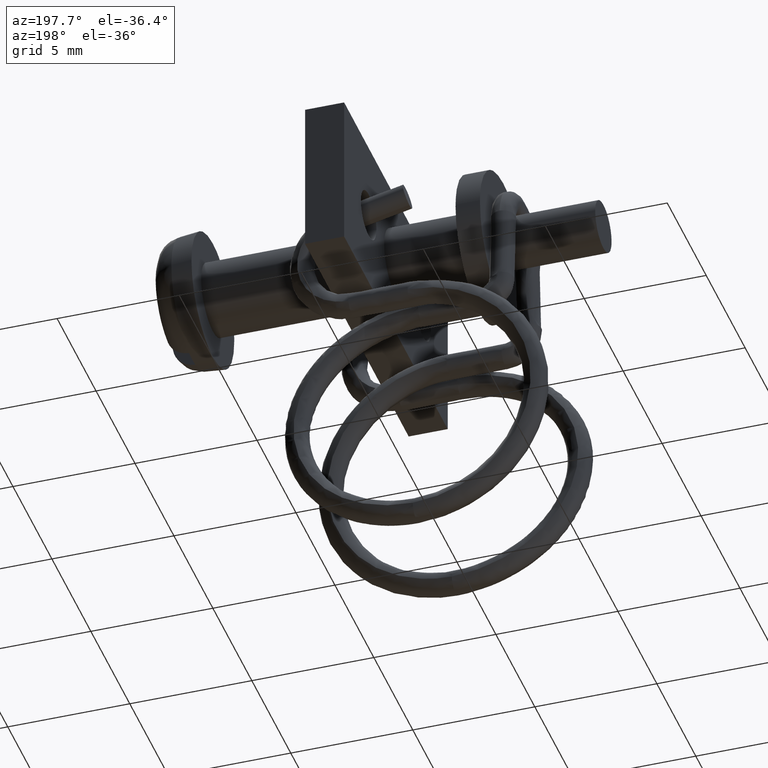
[diagram: clean part render]
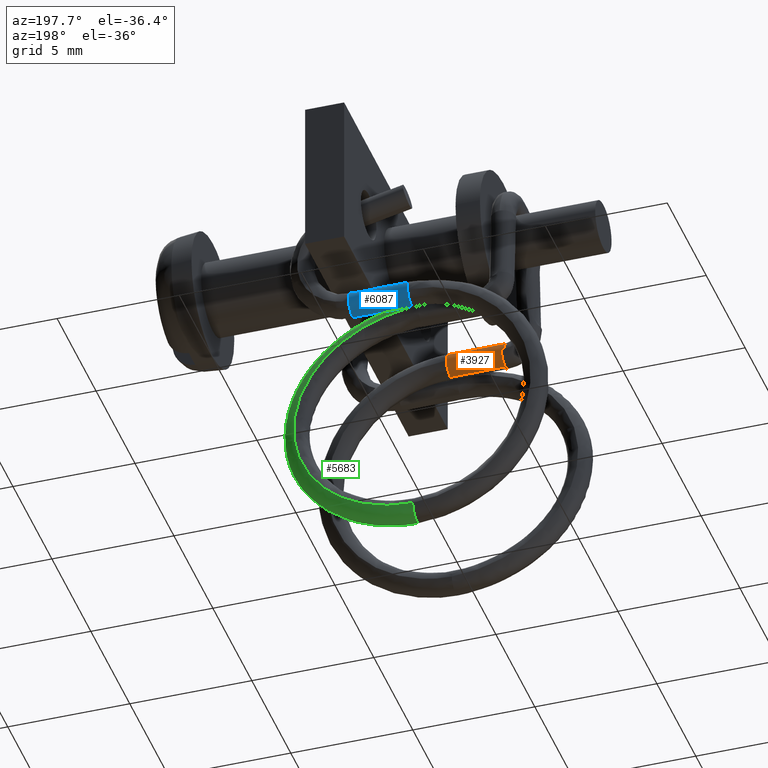
[diagram: same view with three faces highlighted in distinct colors, each labeled with its STEP entity id]
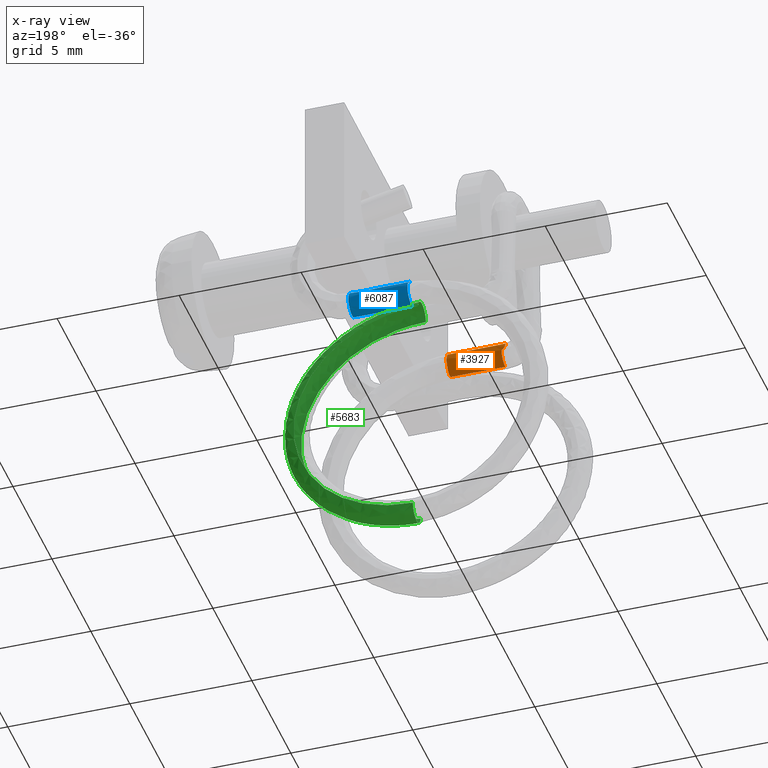
[diagram: x-ray of the same camera — body ghosted, the three highlighted faces saturated]
A machine part, auxiliary view with three faces highlighted in distinct colors.
The next image is the same camera in x-ray (body ghosted, the three faces saturated) — at least one of them is partly hidden behind the body in this view.
Their STEP definitions:

[orange] entity #3927 — the highlighted face is a freeform B-spline surface patch.
#3416=CARTESIAN_POINT('',(-9.150000000000107,-1.325094395360933,-4.033725234265491));
#3417=VERTEX_POINT('',#3416);
#3447=CARTESIAN_POINT('',(-9.150000000000105,-1.818437196620718,-4.499938782707879));
#3448=VERTEX_POINT('',#3447);
#3460=CARTESIAN_POINT('',(-9.150000000000107,-1.325094395360933,-4.033725234265491));
#3461=CARTESIAN_POINT('',(-9.150000000000107,-1.333923580721595,-4.164331175820698));
#3462=CARTESIAN_POINT('',(-9.150000000000107,-1.396462202735563,-4.290499852558422));
#3463=CARTESIAN_POINT('',(-9.150000000000107,-1.583783851617188,-4.454109181018163));
#3464=CARTESIAN_POINT('',(-9.150000000000107,-1.700730639473267,-4.498304522242333));
#3465=CARTESIAN_POINT('',(-9.150000000000105,-1.818437196620718,-4.499938782707879));
#3466=B_SPLINE_CURVE_WITH_KNOTS('',3,(#3460,#3461,#3462,#3463,#3464,#3465),.UNSPECIFIED.,.F.,.U.,(4,2,4),(0.500000000000000,0.625000000000000,0.737495030352528),.UNSPECIFIED.);
#3467=EDGE_CURVE('',#3417,#3448,#3466,.T.);
#3594=CARTESIAN_POINT('',(-9.150000000000107,-1.829474218034682,-3.500061217265068));
#3595=VERTEX_POINT('',#3594);
#3596=CARTESIAN_POINT('',(-9.150000000000107,-1.829474218034682,-3.500061217265068));
#3597=CARTESIAN_POINT('',(-9.150000000000107,-1.816389922858462,-3.499880360098274));
#3598=CARTESIAN_POINT('',(-9.150000000000107,-1.803296239522126,-3.500225412944921));
#3599=CARTESIAN_POINT('',(-9.150000000000107,-1.659629241141895,-3.509942363682003));
#3600=CARTESIAN_POINT('',(-9.150000000000109,-1.533466474067729,-3.572486602556249));
#3601=CARTESIAN_POINT('',(-9.150000000000107,-1.361254227003606,-3.769682533713687));
#3602=CARTESIAN_POINT('',(-9.150000000000107,-1.316265201222585,-3.903119926440690));
#3603=CARTESIAN_POINT('',(-9.150000000000107,-1.325094395360933,-4.033725234265491));
#3604=B_SPLINE_CURVE_WITH_KNOTS('',3,(#3596,#3597,#3598,#3599,#3600,#3601,#3602,#3603),.UNSPECIFIED.,.F.,.U.,(4,2,2,4),(0.237495030350194,0.250000000000000,0.375000000000000,0.500000000000000),.UNSPECIFIED.);
#3605=EDGE_CURVE('',#3595,#3417,#3604,.T.);
#3751=CARTESIAN_POINT('',(-11.416972772720220,-1.829474653824413,-3.500031429062623));
#3752=VERTEX_POINT('',#3751);
#3753=CARTESIAN_POINT('',(-11.416972772720220,-1.829474653824413,-3.500031429062623));
#3754=CARTESIAN_POINT('',(-9.150000000000107,-1.829474218034682,-3.500061217265068));
#3755=QUASI_UNIFORM_CURVE('',1,(#3753,#3754),.UNSPECIFIED.,.F.,.U.);
#3756=EDGE_CURVE('',#3752,#3595,#3755,.T.);
#3800=CARTESIAN_POINT('',(-11.400000000000000,-1.818439388492013,-4.499853503640596));
#3801=VERTEX_POINT('',#3800);
#3811=CARTESIAN_POINT('',(-11.400000000000000,-1.818439388492013,-4.499853503640596));
#3812=CARTESIAN_POINT('',(-9.150000000000105,-1.818437196620718,-4.499938782707879));
#3813=QUASI_UNIFORM_CURVE('',1,(#3811,#3812),.UNSPECIFIED.,.F.,.U.);
#3814=EDGE_CURVE('',#3801,#3448,#3813,.T.);
#3820=CARTESIAN_POINT('',(-11.588859964857440,-1.826058490935374,-4.500481906870347));
#3821=CARTESIAN_POINT('',(-11.588859964857440,-1.668786595068350,-4.501004415548722));
#3822=CARTESIAN_POINT('',(-11.588859964857431,-1.499511032190786,-4.423517969774761));
#3823=CARTESIAN_POINT('',(-11.588859964857450,-1.406354593065213,-4.306175667796277));
#3824=CARTESIAN_POINT('',(-11.588859964857431,-1.324298609008611,-4.153145342758368));
#3825=CARTESIAN_POINT('',(-11.588859964857440,-1.324897842861671,-3.834185362476309));
#3826=CARTESIAN_POINT('',(-11.588859964857431,-1.394012496513434,-3.676222241035402));
#3827=CARTESIAN_POINT('',(-11.588859964857450,-1.516051231901350,-3.556964573538060));
#3828=CARTESIAN_POINT('',(-11.588859964857420,-1.676391605308977,-3.496153956676137));
#3829=CARTESIAN_POINT('',(-11.588859964857431,-1.837441138142850,-3.500160323182365));
#3830=CARTESIAN_POINT('',(-10.755582810197851,-1.827082123565222,-4.499750727578457));
#3831=CARTESIAN_POINT('',(-10.755582810197851,-1.666223448922111,-4.495975069094302));
#3832=CARTESIAN_POINT('',(-10.755582810197851,-1.522877054247309,-4.441120896886440));
#3833=CARTESIAN_POINT('',(-10.755582810197851,-1.373915371766895,-4.322383690648544));
#3834=CARTESIAN_POINT('',(-10.755582810197859,-1.322704327175553,-4.160764823447692));
#3835=CARTESIAN_POINT('',(-10.755582810197851,-1.326763680287399,-3.836783246275283));
#3836=CARTESIAN_POINT('',(-10.755582810197851,-1.390560869650354,-3.679432011495660));
#3837=CARTESIAN_POINT('',(-10.755582810197840,-1.518050139343860,-3.557774323496225));
#3838=CARTESIAN_POINT('',(-10.755582810197859,-1.675681936595461,-3.496310283425166));
#3839=CARTESIAN_POINT('',(-10.755582810197851,-1.837500652902586,-3.500052925909626));
#3840=CARTESIAN_POINT('',(-9.922305655538253,-1.826593858063665,-4.500021898047198));
#3841=CARTESIAN_POINT('',(-9.922305655538247,-1.664444216111873,-4.504134837987727));
#3842=CARTESIAN_POINT('',(-9.922305655538258,-1.502324118175499,-4.434170326013711));
#3843=CARTESIAN_POINT('',(-9.922305655538242,-1.388718421334022,-4.311894144415970));
#3844=CARTESIAN_POINT('',(-9.922305655538255,-1.322292014690437,-4.154032135217202));
#3845=CARTESIAN_POINT('',(-9.922305655538262,-1.326051197910457,-3.831274195475507));
#3846=CARTESIAN_POINT('',(-9.922305655538281,-1.394977423827919,-3.675108305588196));
#3847=CARTESIAN_POINT('',(-9.922305655538255,-1.516702155491779,-3.555572350213677));
#3848=CARTESIAN_POINT('',(-9.922305655538276,-1.676962638475497,-3.495449696626651));
#3849=CARTESIAN_POINT('',(-9.922305655538267,-1.837423289360452,-3.500197481210657));
#3850=CARTESIAN_POINT('',(-9.089028500878671,-1.826707039524672,-4.500102506668212));
#3851=CARTESIAN_POINT('',(-9.089028500878676,-1.666121541879416,-4.499170709408958));
#3852=CARTESIAN_POINT('',(-9.089028500878658,-1.506465552940171,-4.438162687938303));
#3853=CARTESIAN_POINT('',(-9.089028500878680,-1.386626102295944,-4.312318413331687));
#3854=CARTESIAN_POINT('',(-9.089028500878666,-1.322059334858417,-4.155615911634562));
#3855=CARTESIAN_POINT('',(-9.089028500878676,-1.326468098601326,-3.833651698938656));
#3856=CARTESIAN_POINT('',(-9.089028500878653,-1.391506722831077,-3.676609496862954));
#3857=CARTESIAN_POINT('',(-9.089028500878696,-1.518232765733151,-3.557335316940909));
#3858=CARTESIAN_POINT('',(-9.089028500878653,-1.675907110073231,-3.496180961784192));
#3859=CARTESIAN_POINT('',(-9.089028500878669,-1.837475479278722,-3.500117932635829));
#3860=B_SPLINE_SURFACE_WITH_KNOTS('',5,3,((#3820,#3830,#3840,#3850),(#3821,#3831,#3841,#3851),(#3822,#3832,#3842,#3852),(#3823,#3833,#3843,#3853),(#3824,#3834,#3844,#3854),(#3825,#3835,#3845,#3855),(#3826,#3836,#3846,#3856),(#3827,#3837,#3847,#3857),(#3828,#3838,#3848,#3858),(#3829,#3839,#3849,#3859)),.UNSPECIFIED.,.F.,.F.,.U.,(6,4,6),(4,4),(0.0,0.808380137544935,1.616461780499539),(0.0,2.499831463978769),.UNSPECIFIED.);
#3861=ORIENTED_EDGE('',*,*,#3605,.T.);
#3862=ORIENTED_EDGE('',*,*,#3467,.T.);
#3863=ORIENTED_EDGE('',*,*,#3814,.F.);
#3864=CARTESIAN_POINT('',(-11.400000000000000,-1.325094395359462,-4.033725234265370));
#3865=VERTEX_POINT('',#3864);
#3866=CARTESIAN_POINT('',(-11.400000000000000,-1.325094395359462,-4.033725234265370));
#3867=CARTESIAN_POINT('',(-11.400000000000000,-1.341866017618423,-4.281851510349154));
#3868=CARTESIAN_POINT('',(-11.400000000000000,-1.571604724790512,-4.494264250143698));
#3869=CARTESIAN_POINT('',(-11.400000000000000,-1.818439388492013,-4.499853503640596));
#3870=B_SPLINE_CURVE_WITH_KNOTS('',3,(#3866,#3867,#3868,#3869),.UNSPECIFIED.,.F.,.U.,(4,4),(0.500000000000000,0.737454105425807),.UNSPECIFIED.);
#3871=EDGE_CURVE('',#3865,#3801,#3870,.T.);
#3872=ORIENTED_EDGE('',*,*,#3871,.F.);
#3873=CARTESIAN_POINT('',(-11.416972772720220,-1.829474653824413,-3.500031429062623));
#3874=CARTESIAN_POINT('',(-11.415172229000611,-1.823932770499084,-3.499963939076344));
#3875=CARTESIAN_POINT('',(-11.413337604644370,-1.818390299458285,-3.500002863710797));
#3876=CARTESIAN_POINT('',(-11.411156982773511,-1.810534541493393,-3.500179053761440));
#3877=CARTESIAN_POINT('',(-11.409710573586329,-1.806071525421934,-3.500299659680567));
#3878=CARTESIAN_POINT('',(-11.409514259614930,-1.800797911351229,-3.500529254697184));
#3879=CARTESIAN_POINT('',(-11.409252939511379,-1.797323942797405,-3.500709168784548));
#3880=CARTESIAN_POINT('',(-11.409108240833680,-1.794416275993064,-3.500844006854039));
#3881=CARTESIAN_POINT('',(-11.408553125804000,-1.791848501870573,-3.501022226326818));
#3882=CARTESIAN_POINT('',(-11.407733204613431,-1.789685863328830,-3.501178208452051));
#3883=CARTESIAN_POINT('',(-11.407436499060120,-1.787951784130777,-3.501332416153227));
#3884=CARTESIAN_POINT('',(-11.407693359130301,-1.785923901528456,-3.501552548080788));
#3885=CARTESIAN_POINT('',(-11.407874334213449,-1.783320921384519,-3.501824446052217));
#3886=CARTESIAN_POINT('',(-11.408398285853000,-1.781057227740442,-3.502087353742644));
#3887=CARTESIAN_POINT('',(-11.408874600144539,-1.778194828346928,-3.502403111039510));
#3888=CARTESIAN_POINT('',(-11.411560359534899,-1.767218204074177,-3.503706233887686));
#3889=CARTESIAN_POINT('',(-11.414802451178179,-1.757301657428499,-3.504924212042616));
#3890=CARTESIAN_POINT('',(-11.419457477449260,-1.743602089687925,-3.506751870378676));
#3891=CARTESIAN_POINT('',(-11.422609370706050,-1.734889872151291,-3.507835613930673));
#3892=CARTESIAN_POINT('',(-11.425588104893629,-1.726229645434469,-3.509623615843382));
#3893=CARTESIAN_POINT('',(-11.446928153876771,-1.666510087910966,-3.522011569555532));
#3894=CARTESIAN_POINT('',(-11.467346356043810,-1.607856772722040,-3.544978732044835));
#3895=CARTESIAN_POINT('',(-11.491034951508150,-1.535763222791266,-3.590680432678947));
#3896=CARTESIAN_POINT('',(-11.507330269676761,-1.485258882150248,-3.628894826308590));
#3897=CARTESIAN_POINT('',(-11.524547690474320,-1.423998707525632,-3.694683127252019));
#3898=CARTESIAN_POINT('',(-11.532394487357900,-1.371350529935483,-3.780273242686496));
#3899=CARTESIAN_POINT('',(-11.527326464156319,-1.342092396127157,-3.859593281619357));
#3900=CARTESIAN_POINT('',(-11.512591679722689,-1.330908644904326,-3.913971906863141));
#3901=CARTESIAN_POINT('',(-11.502063549841379,-1.327593012443368,-3.939696679054657));
#3902=CARTESIAN_POINT('',(-11.498668323677030,-1.326758283779378,-3.947067164938931));
#3903=CARTESIAN_POINT('',(-11.495029262739139,-1.326038042100916,-3.954329313396344));
#3904=CARTESIAN_POINT('',(-11.491815268072560,-1.325501961406288,-3.960526627885246));
#3905=CARTESIAN_POINT('',(-11.487858991165760,-1.325068943916000,-3.966288321170018));
#3906=CARTESIAN_POINT('',(-11.483605875262789,-1.324791727727412,-3.971831328288776));
#3907=CARTESIAN_POINT('',(-11.479370162056760,-1.324438864867051,-3.977378755028687));
#3908=CARTESIAN_POINT('',(-11.474809776759150,-1.324227439478173,-3.983436368979594));
#3909=CARTESIAN_POINT('',(-11.472385439322199,-1.324120632936097,-3.987413239181950));
#3910=CARTESIAN_POINT('',(-11.468597629786901,-1.323968680400039,-3.993350611221024));
#3911=CARTESIAN_POINT('',(-11.463283009244780,-1.323904013616384,-3.997227169247605));
#3912=CARTESIAN_POINT('',(-11.457169927650201,-1.323930415117996,-4.000527928360146));
#3913=CARTESIAN_POINT('',(-11.453107586056790,-1.323953497190440,-4.002828201690951));
#3914=CARTESIAN_POINT('',(-11.447898908484040,-1.323964669853405,-4.005461194107208));
#3915=CARTESIAN_POINT('',(-11.443109251798839,-1.324037803461694,-4.008801476323965));
#3916=CARTESIAN_POINT('',(-11.440551457737721,-1.324077261139727,-4.011172006994848));
#3917=CARTESIAN_POINT('',(-11.435198140737040,-1.324188821563373,-4.015673804121001));
#3918=CARTESIAN_POINT('',(-11.422510878029859,-1.324564349505525,-4.024034790159284));
#3919=CARTESIAN_POINT('',(-11.408742904655901,-1.324981884592777,-4.030481149277152));
#3920=CARTESIAN_POINT('',(-11.400000000000000,-1.325094395359462,-4.033725234265370));
#3921=B_SPLINE_CURVE_WITH_KNOTS('',3,(#3873,#3874,#3875,#3876,#3877,#3878,#3879,#3880,#3881,#3882,#3883,#3884,#3885,#3886,#3887,#3888,#3889,#3890,#3891,#3892,#3893,#3894,#3895,#3896,#3897,#3898,#3899,#3900,#3901,#3902,#3903,#3904,#3905,#3906,#3907,#3908,#3909,#3910,#3911,#3912,#3913,#3914,#3915,#3916,#3917,#3918,#3919,#3920),.UNSPECIFIED.,.F.,.U.,(4,2,1,1,1,1,1,1,1,1,1,1,1,1,2,1,2,1,1,1,1,1,1,1,1,1,1,1,1,1,1,1,1,1,1,1,1,1,1,2,1,4),(-0.000037288325235,0.017457103366742,0.024434564339885,0.031431705682511,0.033182101314863,0.034932496947215,0.040171288551643,0.041004724281553,0.041901636560367,0.045394979241352,0.047144530173796,0.049768169325341,0.052391808476885,0.055903445433053,0.083879575490014,0.099666728745347,0.111845999595831,0.293667415184476,0.307649582952110,0.377582604925483,0.489472191193922,0.580379204061572,0.678284207176774,0.741219050844077,0.751709760743402,0.762201159040324,0.765697683929550,0.776185301076071,0.783178167593321,0.786674678845948,0.797164212603830,0.804157031604413,0.809408730273391,0.811159296496384,0.825136898809736,0.828634071647015,0.832131244484293,0.839125590158848,0.846120106726427,0.849583707700987,0.867089333754338,0.895066713307992),.UNSPECIFIED.);
#3922=EDGE_CURVE('',#3752,#3865,#3921,.T.);
#3923=ORIENTED_EDGE('',*,*,#3922,.F.);
#3924=ORIENTED_EDGE('',*,*,#3756,.T.);
#3925=EDGE_LOOP('',(#3861,#3862,#3863,#3872,#3923,#3924));
#3926=FACE_OUTER_BOUND('',#3925,.T.);
#3927=ADVANCED_FACE('',(#3926),#3860,.T.);

[blue] entity #6087 — the highlighted face is a freeform B-spline surface patch.
#5821=CARTESIAN_POINT('',(-9.150000000000306,3.677413767186821,-4.101714622655759));
#5822=VERTEX_POINT('',#5821);
#5836=CARTESIAN_POINT('',(-9.150000000000304,3.048067312004353,-4.480025774904899));
#5837=VERTEX_POINT('',#5836);
#5838=CARTESIAN_POINT('',(-9.150000000000304,3.048067312004353,-4.480025774904899));
#5839=CARTESIAN_POINT('',(-9.150000000000304,3.060620648724507,-4.483719719524305));
#5840=CARTESIAN_POINT('',(-9.150000000000304,3.073324500500692,-4.486909665435398));
#5841=CARTESIAN_POINT('',(-9.150000000000306,3.214309635516584,-4.516198182988648));
#5842=CARTESIAN_POINT('',(-9.150000000000304,3.352646629829435,-4.489897962145783));
#5843=CARTESIAN_POINT('',(-9.150000000000306,3.571557766359414,-4.346297100008716));
#5844=CARTESIAN_POINT('',(-9.150000000000306,3.650783890418286,-4.229880728801318));
#5845=CARTESIAN_POINT('',(-9.150000000000306,3.677413767186821,-4.101714622655759));
#5846=B_SPLINE_CURVE_WITH_KNOTS('',3,(#5838,#5839,#5840,#5841,#5842,#5843,#5844,#5845),.UNSPECIFIED.,.F.,.U.,(4,2,2,4),(0.737495030346914,0.750000000000000,0.875000000000000,1.0),.UNSPECIFIED.);
#5847=EDGE_CURVE('',#5837,#5822,#5846,.T.);
#5983=CARTESIAN_POINT('',(-9.150000000000304,3.327670572652044,-3.519974225063862));
#5984=VERTEX_POINT('',#5983);
#5996=CARTESIAN_POINT('',(-9.150000000000306,3.677413767186821,-4.101714622655759));
#5997=CARTESIAN_POINT('',(-9.150000000000306,3.704043822886602,-3.973547908501884));
#5998=CARTESIAN_POINT('',(-9.150000000000306,3.677750601593275,-3.835206733332973));
#5999=CARTESIAN_POINT('',(-9.150000000000306,3.541345803979771,-3.627237640225089));
#6000=CARTESIAN_POINT('',(-9.150000000000306,3.440598663229614,-3.553212016233988));
#6001=CARTESIAN_POINT('',(-9.150000000000304,3.327670572652044,-3.519974225063862));
#6002=B_SPLINE_CURVE_WITH_KNOTS('',3,(#5996,#5997,#5998,#5999,#6000,#6001),.UNSPECIFIED.,.F.,.U.,(4,2,4),(0.0,0.125000000000000,0.237495030355645),.UNSPECIFIED.);
#6003=EDGE_CURVE('',#5822,#5984,#6002,.T.);
#6010=CARTESIAN_POINT('',(-6.665751618759813,3.327305427334448,-3.519744353341870));
#6011=CARTESIAN_POINT('',(-6.665751618759816,3.481316087108194,-3.564696349787472));
#6012=CARTESIAN_POINT('',(-6.665751618759811,3.603268996131752,-3.683536444009729));
#6013=CARTESIAN_POINT('',(-6.665751618759819,3.688269777782374,-3.814266460541858));
#6014=CARTESIAN_POINT('',(-6.665751618759813,3.710752572421930,-3.989016408722484));
#6015=CARTESIAN_POINT('',(-6.665751618759820,3.621801371845621,-4.289503142124007));
#6016=CARTESIAN_POINT('',(-6.665751618759799,3.508813418036932,-4.420350152032474));
#6017=CARTESIAN_POINT('',(-6.665751618759829,3.370461800853577,-4.494944696946186));
#6018=CARTESIAN_POINT('',(-6.665751618759809,3.200773521311171,-4.528034962374092));
#6019=CARTESIAN_POINT('',(-6.665751618759813,3.047645371054767,-4.479824497118732));
#6020=CARTESIAN_POINT('',(-7.514536482350317,3.327255486764770,-3.520084909676720));
#6021=CARTESIAN_POINT('',(-7.514536482350315,3.476657352443937,-3.567035858504582));
#6022=CARTESIAN_POINT('',(-7.514536482350318,3.614358316910476,-3.659052952393135));
#6023=CARTESIAN_POINT('',(-7.514536482350315,3.698173092926834,-3.822197424214166));
#6024=CARTESIAN_POINT('',(-7.514536482350316,3.713238266147455,-3.982780574302776));
#6025=CARTESIAN_POINT('',(-7.514536482350309,3.620672948021367,-4.289924124737698));
#6026=CARTESIAN_POINT('',(-7.514536482350324,3.518265480479806,-4.419291041921920));
#6027=CARTESIAN_POINT('',(-7.514536482350288,3.360051207874857,-4.506753331266818));
#6028=CARTESIAN_POINT('',(-7.514536482350314,3.198407886077088,-4.516545230621285));
#6029=CARTESIAN_POINT('',(-7.514536482350306,3.047772302509136,-4.479877067723375));
#6030=CARTESIAN_POINT('',(-8.363321345940818,3.327313852857737,-3.519830744694522));
#6031=CARTESIAN_POINT('',(-8.363321345940816,3.482921101702868,-3.562113340935251));
#6032=CARTESIAN_POINT('',(-8.363321345940824,3.610422334151570,-3.673176755801085));
#6033=CARTESIAN_POINT('',(-8.363321345940813,3.694354397934899,-3.815422718737929));
#6034=CARTESIAN_POINT('',(-8.363321345940822,3.711674131343728,-3.986888060165586));
#6035=CARTESIAN_POINT('',(-8.363321345940829,3.624241532811825,-4.295182078472953));
#6036=CARTESIAN_POINT('',(-8.363321345940827,3.517853818879182,-4.428171837832065));
#6037=CARTESIAN_POINT('',(-8.363321345940852,3.371895103773833,-4.508142388473859));
#6038=CARTESIAN_POINT('',(-8.363321345940822,3.201660033581224,-4.528032400130940));
#6039=CARTESIAN_POINT('',(-8.363321345940834,3.047696544003951,-4.479896235295884));
#6040=CARTESIAN_POINT('',(-9.212106209531319,3.327278112318792,-3.519858534165645));
#6041=CARTESIAN_POINT('',(-9.212106209531321,3.479655717677096,-3.565773004156808));
#6042=CARTESIAN_POINT('',(-9.212106209531312,3.614007162181941,-3.668003885593920));
#6043=CARTESIAN_POINT('',(-9.212106209531328,3.693459059957611,-3.820229160894627));
#6044=CARTESIAN_POINT('',(-9.212106209531315,3.712671378369225,-3.986669585661302));
#6045=CARTESIAN_POINT('',(-9.212106209531319,3.622659484496290,-4.292494908740507));
#6046=CARTESIAN_POINT('',(-9.212106209531317,3.519419442347750,-4.425223210654292));
#6047=CARTESIAN_POINT('',(-9.212106209531305,3.367651612848408,-4.506145694349899));
#6048=CARTESIAN_POINT('',(-9.212106209531330,3.201420682513175,-4.524424632152472));
#6049=CARTESIAN_POINT('',(-9.212106209531308,3.047669519662854,-4.479903385298398));
#6050=B_SPLINE_SURFACE_WITH_KNOTS('',5,3,((#6010,#6020,#6030,#6040),(#6011,#6021,#6031,#6041),(#6012,#6022,#6032,#6042),(#6013,#6023,#6033,#6043),(#6014,#6024,#6034,#6044),(#6015,#6025,#6035,#6045),(#6016,#6026,#6036,#6046),(#6017,#6027,#6037,#6047),(#6018,#6028,#6038,#6048),(#6019,#6029,#6039,#6049)),.UNSPECIFIED.,.F.,.F.,.U.,(6,4,6),(4,4),(1.999511949233303,3.0,4.000486265330441),(0.0,2.546354590771506),.UNSPECIFIED.);
#6051=ORIENTED_EDGE('',*,*,#6003,.T.);
#6052=CARTESIAN_POINT('',(-6.726343042692510,3.327645520994625,-3.520055770988874));
#6053=VERTEX_POINT('',#6052);
#6054=CARTESIAN_POINT('',(-6.726343042692510,3.327645520994625,-3.520055770988874));
#6055=CARTESIAN_POINT('',(-9.150000000000304,3.327670572652044,-3.519974225063862));
#6056=QUASI_UNIFORM_CURVE('',1,(#6054,#6055),.UNSPECIFIED.,.F.,.U.);
#6057=EDGE_CURVE('',#6053,#5984,#6056,.T.);
#6058=ORIENTED_EDGE('',*,*,#6057,.F.);
#6059=CARTESIAN_POINT('',(-6.726343042692510,3.677413767197815,-4.101714622658043));
#6060=VERTEX_POINT('',#6059);
#6061=CARTESIAN_POINT('',(-6.726343042692510,3.677413767197815,-4.101714622658043));
#6062=CARTESIAN_POINT('',(-6.726343042692511,3.728007833167398,-3.858222986892010));
#6063=CARTESIAN_POINT('',(-6.726343042692510,3.563877945054567,-3.591839005700944));
#6064=CARTESIAN_POINT('',(-6.726343042692510,3.327645520994625,-3.520055770988874));
#6065=B_SPLINE_CURVE_WITH_KNOTS('',3,(#6061,#6062,#6063,#6064),.UNSPECIFIED.,.F.,.U.,(4,4),(0.0,0.237454105432318),.UNSPECIFIED.);
#6066=EDGE_CURVE('',#6060,#6053,#6065,.T.);
#6067=ORIENTED_EDGE('',*,*,#6066,.F.);
#6068=CARTESIAN_POINT('',(-6.726343042692510,3.048092363662414,-4.479944228977951));
#6069=VERTEX_POINT('',#6068);
#6070=CARTESIAN_POINT('',(-6.726343042692510,3.048092363662414,-4.479944228977951));
#6071=CARTESIAN_POINT('',(-6.726343042692510,3.060574593779242,-4.483733990723705));
#6072=CARTESIAN_POINT('',(-6.726343042692510,3.073258103832249,-4.486980507420370));
#6073=CARTESIAN_POINT('',(-6.726343042692510,3.342455761922752,-4.542880272059289));
#6074=CARTESIAN_POINT('',(-6.726343042692510,3.624147952179383,-4.358066569959009));
#6075=CARTESIAN_POINT('',(-6.726343042692510,3.677413767197815,-4.101714622658043));
#6076=B_SPLINE_CURVE_WITH_KNOTS('',3,(#6070,#6071,#6072,#6073,#6074,#6075),.UNSPECIFIED.,.F.,.U.,(4,2,4),(0.737454105418255,0.750000000000000,1.0),.UNSPECIFIED.);
#6077=EDGE_CURVE('',#6069,#6060,#6076,.T.);
#6078=ORIENTED_EDGE('',*,*,#6077,.F.);
#6079=CARTESIAN_POINT('',(-6.726343042692510,3.048092363662414,-4.479944228977951));
#6080=CARTESIAN_POINT('',(-9.150000000000304,3.048067312004353,-4.480025774904899));
#6081=QUASI_UNIFORM_CURVE('',1,(#6079,#6080),.UNSPECIFIED.,.F.,.U.);
#6082=EDGE_CURVE('',#6069,#5837,#6081,.T.);
#6083=ORIENTED_EDGE('',*,*,#6082,.T.);
#6084=ORIENTED_EDGE('',*,*,#5847,.T.);
#6085=EDGE_LOOP('',(#6051,#6058,#6067,#6078,#6083,#6084));
#6086=FACE_OUTER_BOUND('',#6085,.T.);
#6087=ADVANCED_FACE('',(#6086),#6050,.T.);

[green] entity #5683 — the highlighted face is a freeform B-spline surface patch.
#5352=CARTESIAN_POINT('',(-9.150000000000000,1.829472026130688,-3.500146496332092));
#5353=VERTEX_POINT('',#5352);
#5359=CARTESIAN_POINT('',(-9.150000000000000,2.322817019284233,-3.966274765707520));
#5360=VERTEX_POINT('',#5359);
#5361=CARTESIAN_POINT('',(-9.150000000000000,2.322817019284233,-3.966274765707520));
#5362=CARTESIAN_POINT('',(-9.150000000000000,2.306045397024793,-3.718148489616782));
#5363=CARTESIAN_POINT('',(-9.150000000000000,2.076306689840153,-3.505735749817353));
#5364=CARTESIAN_POINT('',(-9.150000000000000,1.829472026130688,-3.500146496332092));
#5365=B_SPLINE_CURVE_WITH_KNOTS('',3,(#5361,#5362,#5363,#5364),.UNSPECIFIED.,.F.,.U.,(4,4),(0.0,0.237454105432535),.UNSPECIFIED.);
#5366=EDGE_CURVE('',#5360,#5353,#5365,.T.);
#5432=CARTESIAN_POINT('',(-9.150000000000000,1.325094395359464,-4.033725234265373));
#5433=VERTEX_POINT('',#5432);
#5441=CARTESIAN_POINT('',(-9.150000000000000,1.829472026130688,-3.500146496332092));
#5442=CARTESIAN_POINT('',(-9.150000000000000,1.816430441089445,-3.499854225899550));
#5443=CARTESIAN_POINT('',(-9.150000000000000,1.803341131779659,-3.500139321199243));
#5444=CARTESIAN_POINT('',(-9.150000000000000,1.529029131152464,-3.518715895472492));
#5445=CARTESIAN_POINT('',(-9.150000000000000,1.307436536290215,-3.772493980493532));
#5446=CARTESIAN_POINT('',(-9.150000000000000,1.325094395359464,-4.033725234265373));
#5447=B_SPLINE_CURVE_WITH_KNOTS('',3,(#5441,#5442,#5443,#5444,#5445,#5446),.UNSPECIFIED.,.F.,.U.,(4,2,4),(0.237454105432535,0.250000000000000,0.500000000000000),.UNSPECIFIED.);
#5448=EDGE_CURVE('',#5353,#5433,#5447,.T.);
#5539=CARTESIAN_POINT('',(-9.150000000000226,2.001138688056015,-14.033725234292559));
#5540=VERTEX_POINT('',#5539);
#5541=CARTESIAN_POINT('',(-9.150000000000226,2.001138688056015,-14.033725234292559));
#5542=CARTESIAN_POINT('',(-7.837707692007240,2.001138688056015,-14.033725234292559));
#5543=CARTESIAN_POINT('',(-6.540301945701920,1.964713734074474,-13.494929857814450));
#5544=CARTESIAN_POINT('',(-4.689261039582863,1.839597493851198,-11.644219163530799));
#5545=CARTESIAN_POINT('',(-4.150290800071593,1.751673840975370,-10.343658625851919));
#5546=CARTESIAN_POINT('',(-4.149709446521217,1.574709385172934,-7.726012744902645));
#5547=CARTESIAN_POINT('',(-4.688129968991568,1.486753760163605,-6.424979277650715));
#5548=CARTESIAN_POINT('',(-6.539077576025586,1.361560441391725,-4.573128442865855));
#5549=CARTESIAN_POINT('',(-7.836960258703715,1.325094395359464,-4.033725234265373));
#5550=CARTESIAN_POINT('',(-9.150000000000000,1.325094395359464,-4.033725234265373));
#5551=B_SPLINE_CURVE_WITH_KNOTS('',3,(#5541,#5542,#5543,#5544,#5545,#5546,#5547,#5548,#5549,#5550),.UNSPECIFIED.,.F.,.U.,(4,2,2,2,4),(0.258902427212182,0.296831307489795,0.334760187767407,0.372689068045019,0.410617948322630),.UNSPECIFIED.);
#5552=EDGE_CURVE('',#5540,#5433,#5551,.T.);
#5556=CARTESIAN_POINT('',(-9.150000000000151,2.998861311964944,-13.966274765734710));
#5557=VERTEX_POINT('',#5556);
#5558=CARTESIAN_POINT('',(-9.150000000000151,2.998861311964944,-13.966274765734710));
#5559=CARTESIAN_POINT('',(-7.837707692007166,2.998861311964944,-13.966274765734710));
#5560=CARTESIAN_POINT('',(-6.540301945701850,2.962436357984116,-13.427479389256590));
#5561=CARTESIAN_POINT('',(-4.689261039582807,2.837320117764056,-11.576768694972939));
#5562=CARTESIAN_POINT('',(-4.150290800071546,2.749396464890074,-10.276208157293491));
#5563=CARTESIAN_POINT('',(-4.149709446521190,2.572432009091926,-7.658562276345361));
#5564=CARTESIAN_POINT('',(-4.688129968991549,2.484476384084445,-6.357528809092860));
#5565=CARTESIAN_POINT('',(-6.539077576025583,2.359283065315781,-4.505677974308000));
#5566=CARTESIAN_POINT('',(-7.836960258703715,2.322817019284233,-3.966274765707520));
#5567=CARTESIAN_POINT('',(-9.150000000000000,2.322817019284233,-3.966274765707520));
#5568=B_SPLINE_CURVE_WITH_KNOTS('',3,(#5558,#5559,#5560,#5561,#5562,#5563,#5564,#5565,#5566,#5567),.UNSPECIFIED.,.F.,.U.,(4,2,2,2,4),(0.258902427212182,0.296831307489795,0.334760187767407,0.372689068045019,0.410617948322630),.UNSPECIFIED.);
#5569=EDGE_CURVE('',#5557,#5360,#5568,.T.);
#5583=CARTESIAN_POINT('',(-9.306979049239924,2.997801728537505,-13.950601481149720));
#5584=CARTESIAN_POINT('',(-9.315437725689852,3.025362456082080,-14.217233651276940));
#5585=CARTESIAN_POINT('',(-9.323263027634237,2.800152949284950,-14.480849628574241));
#5586=CARTESIAN_POINT('',(-9.323263027637001,2.267297521643341,-14.516873015729900));
#5587=CARTESIAN_POINT('',(-9.315437725689757,2.008656170549307,-14.285967499440160));
#5588=CARTESIAN_POINT('',(-9.306979049239944,2.000079104612778,-14.018051949708170));
#5589=CARTESIAN_POINT('',(-9.254652699493382,2.997801728537505,-13.950601481149720));
#5590=CARTESIAN_POINT('',(-9.260291817126666,3.025362456082080,-14.217233651276940));
#5591=CARTESIAN_POINT('',(-9.265508685089591,2.800152949284950,-14.480849628574241));
#5592=CARTESIAN_POINT('',(-9.265508685091435,2.267297521643341,-14.516873015729900));
#5593=CARTESIAN_POINT('',(-9.260291817126603,2.008656170549307,-14.285967499440160));
#5594=CARTESIAN_POINT('',(-9.254652699493397,2.000079104612778,-14.018051949708170));
#5595=CARTESIAN_POINT('',(-9.202326349746842,2.997801728537505,-13.950601481149720));
#5596=CARTESIAN_POINT('',(-9.205145908563486,3.025362456082080,-14.217233651276940));
#5597=CARTESIAN_POINT('',(-9.207754342544947,2.800152949284950,-14.480849628574241));
#5598=CARTESIAN_POINT('',(-9.207754342545869,2.267297521643341,-14.516873015729900));
#5599=CARTESIAN_POINT('',(-9.205145908563452,2.008656170549307,-14.285967499440160));
#5600=CARTESIAN_POINT('',(-9.202326349746848,2.000079104612778,-14.018051949708170));
#5601=CARTESIAN_POINT('',(-7.841841256336139,2.997801728537505,-13.950601481149720));
#5602=CARTESIAN_POINT('',(-7.771352285920044,3.025362456082080,-14.217233651276940));
#5603=CARTESIAN_POINT('',(-7.706141436383470,2.800152949284950,-14.480849628574241));
#5604=CARTESIAN_POINT('',(-7.706141436360430,2.267297521643341,-14.516873015729900));
#5605=CARTESIAN_POINT('',(-7.771352285920843,2.008656170549307,-14.285967499440160));
#5606=CARTESIAN_POINT('',(-7.841841256335980,2.000079104612778,-14.018051949708170));
#5607=CARTESIAN_POINT('',(-6.548517105758532,2.961491585789478,-13.413504384440371));
#5608=CARTESIAN_POINT('',(-6.408425376654135,2.987094456852587,-13.651176078122520));
#5609=CARTESIAN_POINT('',(-6.278823530947670,2.760073695278446,-13.888000101149711));
#5610=CARTESIAN_POINT('',(-6.278823530901880,2.227218267635907,-13.924023488295891));
#5611=CARTESIAN_POINT('',(-6.408425376655718,1.970388171320143,-13.719909926286091));
#5612=CARTESIAN_POINT('',(-6.548517105758217,1.963768961864878,-13.480954852998760));
#5613=CARTESIAN_POINT('',(-4.703285177121934,2.836767988113824,-11.568601631360110));
#5614=CARTESIAN_POINT('',(-4.464133941660148,2.855675192457339,-11.707231490176060));
#5615=CARTESIAN_POINT('',(-4.242890034420713,2.622460126831278,-11.852429799943780));
#5616=CARTESIAN_POINT('',(-4.242890034342545,2.089604699187130,-11.888453187057580));
#5617=CARTESIAN_POINT('',(-4.464133941662853,1.838968906924355,-11.775965338340750));
#5618=CARTESIAN_POINT('',(-4.703285177121399,1.839045364188941,-11.636052099918279));
#5619=CARTESIAN_POINT('',(-4.165998950611554,2.749119500351278,-10.272111316867949));
#5620=CARTESIAN_POINT('',(-3.898130527473976,2.763334360715825,-10.341332350995931));
#5621=CARTESIAN_POINT('',(-3.650319737592200,2.525778307622172,-10.422319077072659));
#5622=CARTESIAN_POINT('',(-3.650319737504644,1.992922879976058,-10.458342464163771));
#5623=CARTESIAN_POINT('',(-3.898130527477006,1.746628075183062,-10.410066199162600));
#5624=CARTESIAN_POINT('',(-4.165998950610955,1.751396876426604,-10.339561785426501));
#5625=CARTESIAN_POINT('',(-4.165419415254917,2.572708504087999,-7.662652170859030));
#5626=CARTESIAN_POINT('',(-3.897519986767988,2.577485312867738,-7.592266204580494));
#5627=CARTESIAN_POINT('',(-3.649680513177056,2.331197917010502,-7.544099517803591));
#5628=CARTESIAN_POINT('',(-3.649680513089490,1.798342489361588,-7.580122904849068));
#5629=CARTESIAN_POINT('',(-3.897519986771019,1.560779027335368,-7.661000052746362));
#5630=CARTESIAN_POINT('',(-4.165419415254316,1.574985880163136,-7.730102639416193));
#5631=CARTESIAN_POINT('',(-4.702157649459277,2.485028143368376,-6.365690393804683));
#5632=CARTESIAN_POINT('',(-4.462945997036480,2.485110916930470,-6.225870586151052));
#5633=CARTESIAN_POINT('',(-4.241646196779025,2.234480969004331,-6.113469172212174));
#5634=CARTESIAN_POINT('',(-4.241646196700836,1.701625541353593,-6.149492559234956));
#5635=CARTESIAN_POINT('',(-4.462945997039185,1.468404631398014,-6.294604434318882));
#5636=CARTESIAN_POINT('',(-4.702157649458742,1.487305519443737,-6.433140862362227));
#5637=CARTESIAN_POINT('',(-6.547296585039739,2.360227708138505,-4.519651064995129));
#5638=CARTESIAN_POINT('',(-6.407139220315035,2.353610705344574,-4.280728633025276));
#5639=CARTESIAN_POINT('',(-6.277476653695843,2.096782651454924,-4.076645268211087));
#5640=CARTESIAN_POINT('',(-6.277476653650032,1.563927223802286,-4.112668655201482));
#5641=CARTESIAN_POINT('',(-6.407139220316619,1.336904419812182,-4.349462481194226));
#5642=CARTESIAN_POINT('',(-6.547296585039425,1.362505084213549,-4.587101533552450));
#5643=CARTESIAN_POINT('',(-7.841096179165878,2.323876602743350,-3.981948050292508));
#5644=CARTESIAN_POINT('',(-7.770567030008099,2.315299536770440,-3.714032500559332));
#5645=CARTESIAN_POINT('',(-7.705319010261512,2.056658186640505,-3.483126984295226));
#5646=CARTESIAN_POINT('',(-7.705319010238461,1.523802758987084,-3.519150371276145));
#5647=CARTESIAN_POINT('',(-7.770567030008897,1.298593251238077,-3.782766348728615));
#5648=CARTESIAN_POINT('',(-7.841096179165721,1.326153978818541,-4.049398518849762));
#5649=CARTESIAN_POINT('',(-9.202356152833366,2.323876602743350,-3.981948050292508));
#5650=CARTESIAN_POINT('',(-9.205177318799676,2.315299536770440,-3.714032500559332));
#5651=CARTESIAN_POINT('',(-9.207787239589543,2.056658186640505,-3.483126984295226));
#5652=CARTESIAN_POINT('',(-9.207787239590465,1.523802758987084,-3.519150371276145));
#5653=CARTESIAN_POINT('',(-9.205177318799644,1.298593251238077,-3.782766348728615));
#5654=CARTESIAN_POINT('',(-9.202356152833371,1.326153978818541,-4.049398518849762));
#5655=CARTESIAN_POINT('',(-9.254712305666731,2.323876602743350,-3.981948050292508));
#5656=CARTESIAN_POINT('',(-9.260354637599354,2.315299536770440,-3.714032500559332));
#5657=CARTESIAN_POINT('',(-9.265574479179080,2.056658186640505,-3.483126984295226));
#5658=CARTESIAN_POINT('',(-9.265574479180923,1.523802758987084,-3.519150371276145));
#5659=CARTESIAN_POINT('',(-9.260354637599289,1.298593251238077,-3.782766348728615));
#5660=CARTESIAN_POINT('',(-9.254712305666743,1.326153978818541,-4.049398518849762));
#5661=CARTESIAN_POINT('',(-9.307068458500096,2.323876602743350,-3.981948050292508));
#5662=CARTESIAN_POINT('',(-9.315531956399029,2.315299536770440,-3.714032500559332));
#5663=CARTESIAN_POINT('',(-9.323361718768620,2.056658186640505,-3.483126984295226));
#5664=CARTESIAN_POINT('',(-9.323361718771386,1.523802758987084,-3.519150371276145));
#5665=CARTESIAN_POINT('',(-9.315531956398933,1.298593251238077,-3.782766348728615));
#5666=CARTESIAN_POINT('',(-9.307068458500114,1.326153978818541,-4.049398518849762));
#5667=B_SPLINE_SURFACE_WITH_KNOTS('',3,3,((#5583,#5589,#5595,#5601,#5607,#5613,#5619,#5625,#5631,#5637,#5643,#5649,#5655,#5661),(#5584,#5590,#5596,#5602,#5608,#5614,#5620,#5626,#5632,#5638,#5644,#5650,#5656,#5662),(#5585,#5591,#5597,#5603,#5609,#5615,#5621,#5627,#5633,#5639,#5645,#5651,#5657,#5663),(#5586,#5592,#5598,#5604,#5610,#5616,#5622,#5628,#5634,#5640,#5646,#5652,#5658,#5664),(#5587,#5593,#5599,#5605,#5611,#5617,#5623,#5629,#5635,#5641,#5647,#5653,#5659,#5665),(#5588,#5594,#5600,#5606,#5612,#5618,#5624,#5630,#5636,#5642,#5648,#5654,#5660,#5666)),.UNSPECIFIED.,.F.,.F.,.U.,(4,2,4),(4,2,2,2,2,2,4),(0.0,0.804559163651730,1.609118327302856),(0.0,0.171018317492897,4.446476254817378,8.721934192141864,12.997392129466350,17.272850066790831,17.443868384283810),.UNSPECIFIED.);
#5668=ORIENTED_EDGE('',*,*,#5552,.F.);
#5669=CARTESIAN_POINT('',(-9.150000000000151,2.998861311964944,-13.966274765734710));
#5670=CARTESIAN_POINT('',(-9.150000000000151,3.016519803340154,-14.227477937871580));
#5671=CARTESIAN_POINT('',(-9.150000000000169,2.794928406422122,-14.481202820600821));
#5672=CARTESIAN_POINT('',(-9.150000000000208,2.272522062156687,-14.516519803351240));
#5673=CARTESIAN_POINT('',(-9.150000000000226,2.018797179431225,-14.294928406429420));
#5674=CARTESIAN_POINT('',(-9.150000000000226,2.001138688056015,-14.033725234292559));
#5675=B_SPLINE_CURVE_WITH_KNOTS('',3,(#5669,#5670,#5671,#5672,#5673,#5674),.UNSPECIFIED.,.F.,.U.,(4,2,4),(0.0,0.250000000000000,0.500000000000000),.UNSPECIFIED.);
#5676=EDGE_CURVE('',#5557,#5540,#5675,.T.);
#5677=ORIENTED_EDGE('',*,*,#5676,.F.);
#5678=ORIENTED_EDGE('',*,*,#5569,.T.);
#5679=ORIENTED_EDGE('',*,*,#5366,.T.);
#5680=ORIENTED_EDGE('',*,*,#5448,.T.);
#5681=EDGE_LOOP('',(#5668,#5677,#5678,#5679,#5680));
#5682=FACE_OUTER_BOUND('',#5681,.T.);
#5683=ADVANCED_FACE('',(#5682),#5667,.F.);